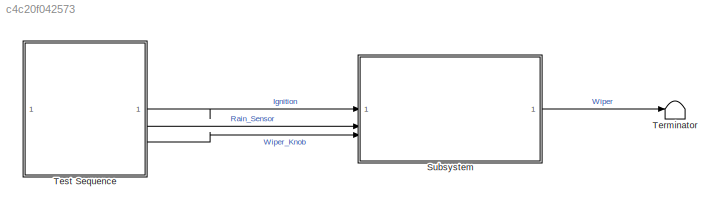
MODEL slx_c4c20f042573
KIND model
CONFIG AbsTol = auto
CONFIG EnableMultiTasking = off
CONFIG FixedStep = 0.1
CONFIG MaxStep = auto
CONFIG MinStep = auto
CONFIG RelTol = 1e-3
CONFIG SampleTimeConstraint = Unconstrained
CONFIG SolverName = FixedStepDiscrete
CONFIG StartTime = 0.0
CONFIG StopTime = 10.0
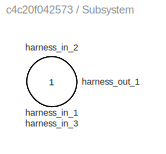
BLOCK [SubSystem] Subsystem
  Tag = __SL_testing_harness_stub_
BLOCK [Inport] Subsystem/harness_in_1
BLOCK [Inport] Subsystem/harness_in_2
  Port = 2
BLOCK [Inport] Subsystem/harness_in_3
  Port = 3
BLOCK [Outport] Subsystem/harness_out_1
BLOCK [Terminator] Terminator
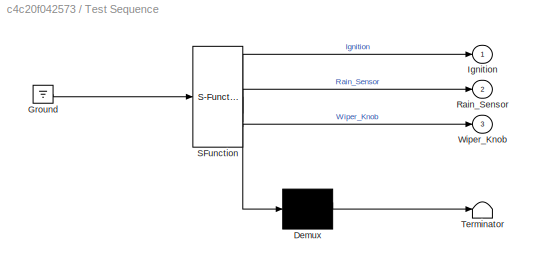
BLOCK [SubSystem] Test Sequence
  ErrorFcn = Stateflow.Translate.translate
  PermitHierarchicalResolution = ExplicitOnly
  SFBlockType = Test Sequence
  ShowPortLabels = none
  TreatAsAtomicUnit = on
BLOCK [Demux] Test Sequence/ Demux 
  Outputs = 1
BLOCK [Ground] Test Sequence/ Ground 
BLOCK [S-Function] Test Sequence/ SFunction 
  EnableBusSupport = on
  FunctionName = sf_sfun
  PortCounts = [1 4]
  SFcnIsStateOwnerBlock = off
  SFunctionDeploymentMode = off
  Tag = Stateflow S-Function 4
BLOCK [Terminator] Test Sequence/ Terminator 
BLOCK [Outport] Test Sequence/Ignition
BLOCK [Outport] Test Sequence/Rain_Sensor
  Port = 2
BLOCK [Outport] Test Sequence/Wiper_Knob
  Port = 3
LINE Subsystem:1 -> Terminator:1
LINE Test Sequence:1 -> Subsystem:1
LINE Test Sequence:2 -> Subsystem:2
LINE Test Sequence:3 -> Subsystem:3
CHART Test Sequence states=6 transitions=9
  STATE_LABEL 'TC_01\n%% Initialize data outputs.\nIgnition = 1;\nRain_Sensor = false;\nWiper_Knob = false;'
  STATE_LABEL 'TC_02\nIgnition = 1;\nRain_Sensor = true;\nWiper_Knob = false;'
  STATE_LABEL 'TC_03\nIgnition = 1;\nRain_Sensor = false;\nWiper_Knob = true;'
  STATE_LABEL 'TC_04\nIgnition = 1;\nRain_Sensor = true;\nWiper_Knob = true;'
  STATE_LABEL 'TC_05\nIgnition = 0;\nRain_Sensor = true;\nWiper_Knob = true;'
  STATE_LABEL 'TC_06\nIgnition = 1;\nRain_Sensor = false;\nWiper_Knob = false;'
